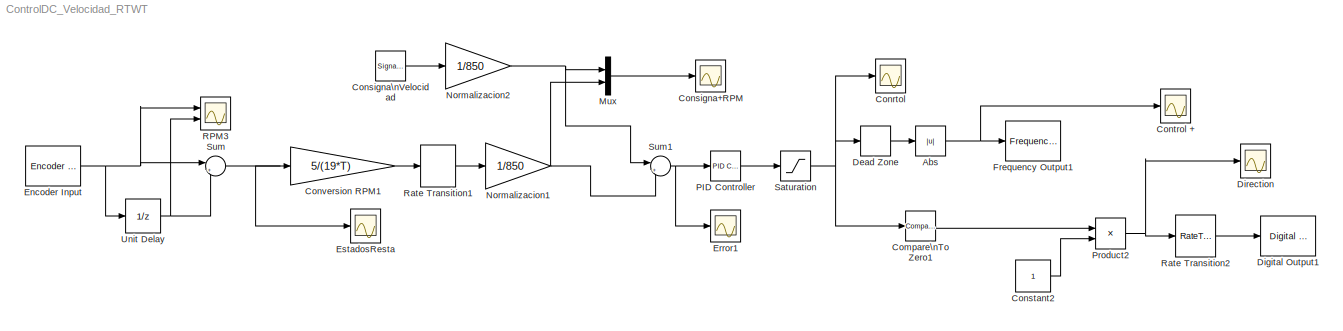
MODEL ControlDC_Velocidad_RTWT
KIND model
BLOCK [Abs] Abs
  SID = 31
  SaturateOnIntegerOverflow = off
BLOCK [Reference] Compare\nTo Zero1  REF=simulink/Logic and Bit\nOperations/Compare\nTo Zero
  FunctionWithSeparateData = off
  GeneratePreprocessorConditionals = off
  LogicOutDataTypeMode = uint8
  Ports = [1, 1]
  RTWMemSecDataConstants = Inherit from model
  RTWMemSecDataInternal = Inherit from model
  RTWMemSecDataParameters = Inherit from model
  RTWMemSecFuncExecute = Inherit from model
  RTWMemSecFuncInitTerm = Inherit from model
  SID = 32
  ShowPortLabels = FromPortIcon
  SourceBlock = simulink/Logic and Bit\nOperations/Compare\nTo Zero
  SourceType = Compare To Zero
  SystemSampleTime = -1
  ZeroCross = on
  relop = <
BLOCK [Scope] Conrtol
  DataFormat = Structure
  Floating = off
  LimitDataPoints = off
  NumInputPorts = 1
  Ports = [1]
  SID = 33
  SampleTime = 0
  TimeRange = 100
  YMax = 1.5
  YMin = -1.5
  ZoomMode = xonly
BLOCK [Scope] Consigna+RPM
  DataFormat = StructureWithTime
  Floating = off
  NumInputPorts = 1
  Ports = [1]
  SID = 34
  SampleTime = 0
  SaveName = ScopeData2
  YMax = 1
  YMin = -1
BLOCK [SignalGenerator] Consigna\nVelocidad
  Amplitude = 800
  Frequency = 0.3
  Ports = [0, 1]
  SID = 53
  WaveForm = square
BLOCK [Constant] Constant2
  SID = 36
BLOCK [Scope] Control +
  DataFormat = Structure
  Floating = off
  LimitDataPoints = off
  NumInputPorts = 1
  Ports = [1]
  SID = 35
  SampleTime = 0
  SaveName = ScopeData3
  TimeRange = 100
  YMax = 1.5
  YMin = -1.5
  ZoomMode = xonly
BLOCK [Gain] Conversion RPM1
  Gain = 5/(19*T)
  OutDataTypeStr = Inherit: Inherit via internal rule
  ParamDataTypeStr = Inherit: Inherit via internal rule
  SID = 37
  SaturateOnIntegerOverflow = off
BLOCK [DeadZone] Dead Zone
  LowerValue = -0.1
  SID = 65
  UpperValue = 0.1
BLOCK [Reference] Digital Output1  REF=rtwinlib/Digital Output
  AttributesFormatString = National Instruments\\nPCI-6221 [auto]
  BitMode = 1
  Channels = 1
  DrvAddress = 4294967295
  DrvName = National_Instruments/PCI-6221
  DrvOptions = [1 1 20480 3 1]
  FinalValue = 0
  InitialValue = 0
  Ports = [1]
  SID = 38
  SampleTime = T
  SourceBlock = rtwinlib/Digital Output
  SourceType = RTWin Digital Output
BLOCK [Scope] Direction
  DataFormat = Structure
  Floating = off
  LimitDataPoints = off
  NumInputPorts = 1
  Ports = [1]
  SID = 66
  SampleTime = 0
  SaveName = ScopeData1
  TimeRange = 100
  YMax = 1.5
  YMin = -1.5
  ZoomMode = xonly
BLOCK [Reference] Encoder Input  REF=rtwinlib/Encoder Input
  AttributesFormatString = National Instruments\\nPCI-6221 [auto]
  Channels = 2
  DataType = 1
  DrvAddress = 4294967295
  DrvName = National_Instruments/PCI-6221
  DrvOptions = [1 1 20480 3 2]
  IndexPulse = 1
  InputFilter = Inf
  Ports = [0, 1]
  QuadMode = 3
  SID = 39
  SampleTime = T
  SourceBlock = rtwinlib/Encoder Input
  SourceType = RTWin Encoder Input
BLOCK [Scope] Error1
  DataFormat = StructureWithTime
  Floating = off
  NumInputPorts = 1
  Ports = [1]
  SID = 56
  SampleTime = 0
  SaveName = ScopeData7
BLOCK [Scope] EstadosResta
  DataFormat = Structure
  Floating = off
  LimitDataPoints = off
  MaxDataPoints = 100000
  NumInputPorts = 1
  Ports = [1]
  SID = 41
  SampleTime = 0
  SaveName = ScopeData4
  TimeRange = 100
  YMax = 35
  YMin = -35
  ZoomMode = xonly
BLOCK [Reference] Frequency Output1  REF=rtwinlib/Frequency Output
  AttributesFormatString = National Instruments\\nPCI-6221 [auto]
  Channels = 1
  DrvAddress = 4294967295
  DrvName = National_Instruments/PCI-6221
  DrvOptions = [1 1 20480 3 1]
  Duty = 0
  DutyFinalValue = 0
  DutySource = 2
  Frequency = 1/T
  FrequencyFinalValue = []
  FrequencySource = 1
  Ports = [1]
  SID = 42
  SampleTime = -1
  SourceBlock = rtwinlib/Frequency Output
  SourceType = RTWin Frequency Output
BLOCK [Mux] Mux
  DisplayOption = bar
  Inputs = 2
  Ports = [2, 1]
  SID = 44
BLOCK [Gain] Normalizacion1
  Gain = 1/850
  OutDataTypeStr = Inherit: Inherit via internal rule
  ParamDataTypeStr = Inherit: Inherit via internal rule
  SID = 45
  SaturateOnIntegerOverflow = off
BLOCK [Gain] Normalizacion2
  Gain = 1/850
  OutDataTypeStr = Inherit: Inherit via internal rule
  ParamDataTypeStr = Inherit: Inherit via internal rule
  SID = 46
  SaturateOnIntegerOverflow = off
BLOCK [Reference] PID Controller  REF=simulink_need_slupdate/PID Controller
  D = 0.08
  FunctionWithSeparateData = off
  GeneratePreprocessorConditionals = off
  I = 40
  P = 4
  Ports = [1, 1]
  RTWMemSecDataConstants = Inherit from model
  RTWMemSecDataInternal = Inherit from model
  RTWMemSecDataParameters = Inherit from model
  RTWMemSecFuncExecute = Inherit from model
  RTWMemSecFuncInitTerm = Inherit from model
  SID = 47
  ShowPortLabels = FromPortIcon
  SourceBlock = simulink_need_slupdate/PID Controller
  SourceType = PID Controller
  SystemSampleTime = -1
BLOCK [Product] Product2
  InputSameDT = off
  OutDataTypeStr = Inherit: Inherit via internal rule
  Ports = [2, 1]
  SID = 48
  SaturateOnIntegerOverflow = off
BLOCK [Scope] RPM3
  DataFormat = Structure
  Floating = off
  LimitDataPoints = off
  MaxDataPoints = 100000
  NumInputPorts = 2
  Ports = [2]
  SID = 50
  SampleTime = 0
  SaveName = ScopeData6
  TimeRange = 100
  YMax = 3500~3500
  YMin = 0~0
BLOCK [RateTransition] Rate Transition1
  OutPortSampleTime = T
  SID = 68
BLOCK [RateTransition] Rate Transition2
  OutPortSampleTime = T
  SID = 51
BLOCK [Saturate] Saturation
  InputPortMap = u0
  LowerLimit = -1
  Ports = [1, 1]
  SID = 52
  UpperLimit = 1
BLOCK [Sum] Sum
  IconShape = round
  InputSameDT = off
  Inputs = |+-
  OutDataTypeStr = Inherit: Inherit via internal rule
  Ports = [2, 1]
  SID = 54
  SaturateOnIntegerOverflow = off
BLOCK [Sum] Sum1
  IconShape = round
  InputSameDT = off
  Inputs = |+-
  OutDataTypeStr = Inherit: Inherit via internal rule
  Ports = [2, 1]
  SID = 55
  SaturateOnIntegerOverflow = off
BLOCK [UnitDelay] Unit Delay
  SID = 63
  SampleTime = T
NET Abs:1 -> Control +:1, Frequency Output1:1
LINE Compare\nTo Zero1:1 -> Product2:1
LINE Consigna\nVelocidad:1 -> Normalizacion2:1
LINE Constant2:1 -> Product2:2
LINE Conversion RPM1:1 -> Rate Transition1:1
LINE Dead Zone:1 -> Abs:1
NET Encoder Input:1 -> RPM3:1, Sum:1, Unit Delay:1
LINE Mux:1 -> Consigna+RPM:1
NET Normalizacion1:1 -> Mux:2, Sum1:2
NET Normalizacion2:1 -> Mux:1, Sum1:1
LINE PID Controller:1 -> Saturation:1
NET Product2:1 -> Direction:1, Rate Transition2:1
LINE Rate Transition1:1 -> Normalizacion1:1
LINE Rate Transition2:1 -> Digital Output1:1
NET Saturation:1 -> Compare\nTo Zero1:1, Conrtol:1, Dead Zone:1
NET Sum1:1 -> Error1:1, PID Controller:1
NET Sum:1 -> Conversion RPM1:1, EstadosResta:1
NET Unit Delay:1 -> RPM3:2, Sum:2
note: NET lines group one-source signal fan-out (src -> all destinations, sorted); 1:1 wires keep LINE
